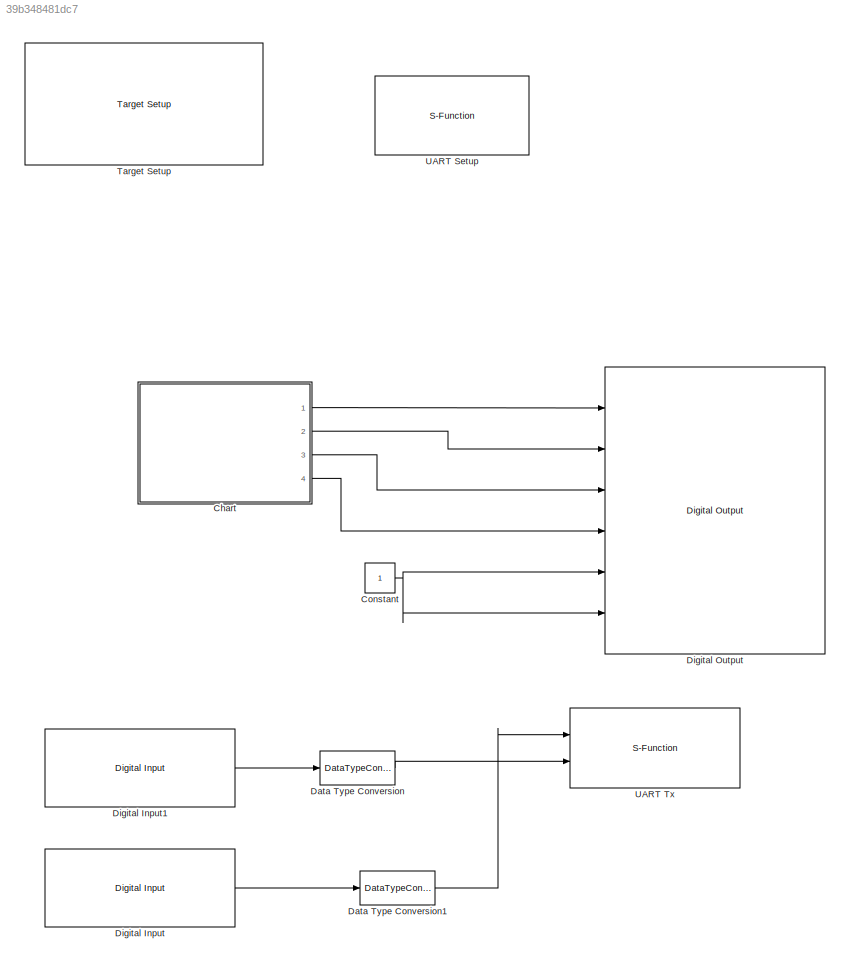
MODEL slx_39b348481dc7
KIND model
CONFIG AbsTol = auto
CONFIG EnableMultiTasking = off
CONFIG FixedStep = auto
CONFIG MaxStep = auto
CONFIG MinStep = auto
CONFIG PreLoadFcn = waijung.modelPreload; % Required for working with Waijung Blockset. Do not remove.
CONFIG RelTol = 1e-3
CONFIG SampleTimeConstraint = Unconstrained
CONFIG Solver = FixedStepAuto
CONFIG SolverName = FixedStepAuto
CONFIG StartTime = 0.0
CONFIG StopTime = 10.0
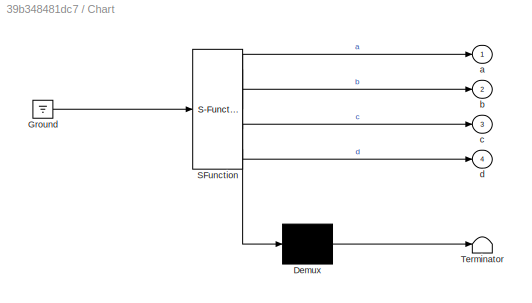
BLOCK [SubSystem] Chart
  ErrorFcn = Stateflow.Translate.translate
  PermitHierarchicalResolution = ExplicitOnly
  Ports = [0, 4]
  RequestExecContextInheritance = off
  SFBlockType = Chart
  TreatAsAtomicUnit = on
  Variant = off
BLOCK [Demux] Chart/ Demux 
  Outputs = 1
  Ports = [1, 1]
BLOCK [Ground] Chart/ Ground 
BLOCK [S-Function] Chart/ SFunction 
  EnableBusSupport = on
  FunctionName = sf_sfun
  PortCounts = [1 5]
  Ports = [1, 5]
  SFcnIsStateOwnerBlock = off
  SFunctionDeploymentMode = off
  Tag = Stateflow S-Function WischerBox 3
BLOCK [Terminator] Chart/ Terminator 
BLOCK [Outport] Chart/a
  IconDisplay = Port number
BLOCK [Outport] Chart/b
  IconDisplay = Port number
  Port = 2
BLOCK [Outport] Chart/c
  IconDisplay = Port number
  Port = 3
BLOCK [Outport] Chart/d
  IconDisplay = Port number
  Port = 4
BLOCK [Constant] Constant
  SampleTime = 0.01
BLOCK [DataTypeConversion] Data Type Conversion
  RndMeth = Floor
  SaturateOnIntegerOverflow = off
BLOCK [DataTypeConversion] Data Type Conversion1
  RndMeth = Floor
  SaturateOnIntegerOverflow = off
BLOCK [Reference] Digital Input  REF=stm32f4_io_lib/Digital Input
  Ports = [0, 1]
  SourceBlock = stm32f4_io_lib/Digital Input
  SourceProductName = Waijung Blockset
  SourceType = stm32f4_digital_input
BLOCK [Reference] Digital Input1  REF=stm32f4_io_lib/Digital Input
  Ports = [0, 1]
  SourceBlock = stm32f4_io_lib/Digital Input
  SourceProductName = Waijung Blockset
  SourceType = stm32f4_digital_input
BLOCK [Reference] Digital Output  REF=stm32f4_io_lib/Digital Output
  Ports = [6]
  SourceBlock = stm32f4_io_lib/Digital Output
  SourceProductName = Waijung Blockset
  SourceType = stm32f4_digital_output
BLOCK [Reference] Target Setup  REF=stm32f4_device_config_lib/Target Setup
  Ports = []
  Priority = 100
  SourceBlock = stm32f4_device_config_lib/Target Setup
  SourceProductName = Waijung Blockset
  SourceType = stm32f4_target_setup
BLOCK [S-Function] UART Setup
  EnableBusSupport = off
  FunctionName = stm32f4_usart
  Parameters = configuration,uartmodule,transfer,baudrate,inputtype,outputtype,confstr,binheaderarray,binterminatorarray,asciiheader,asciiterminator,bindatalength,packetmode,varname,sampletime,sampletimestr,blockid
  Ports = []
  Priority = 1
  SFcnIsStateOwnerBlock = off
  SFunctionDeploymentMode = off
BLOCK [S-Function] UART Tx
  EnableBusSupport = off
  FunctionName = stm32f4_usart
  Parameters = configuration,uartmodule,transfer,baudrate,inputtype,outputtype,confstr,binheaderarray,binterminatorarray,asciiheader,asciiterminator,bindatalength,packetmode,varname,sampletime,sampletimestr,blockid
  Ports = [2]
  Priority = 1
  SFcnIsStateOwnerBlock = off
  SFunctionDeploymentMode = off
LINE Chart:1 -> Digital Output:1
LINE Chart:2 -> Digital Output:2
LINE Chart:3 -> Digital Output:3
LINE Chart:4 -> Digital Output:4
NET Constant:1 -> Digital Output:5, Digital Output:6
LINE Data Type Conversion1:1 -> UART Tx:1
LINE Data Type Conversion:1 -> UART Tx:2
LINE Digital Input1:1 -> Data Type Conversion:1
LINE Digital Input:1 -> Data Type Conversion1:1
note: NET lines group one-source signal fan-out (src -> all destinations, sorted); 1:1 wires keep LINE
CHART Chart states=4 transitions=5
  STATE_LABEL 'Phase1\nentry: a=1\nexit: a=0\n'
  STATE_LABEL 'Phase4\nentry: d=1\nexit: d=0'
  STATE_LABEL 'Phase2\nentry: b=1\nexit: b=0'
  STATE_LABEL 'Phase3\nentry: c=1\nexit: c=0'
